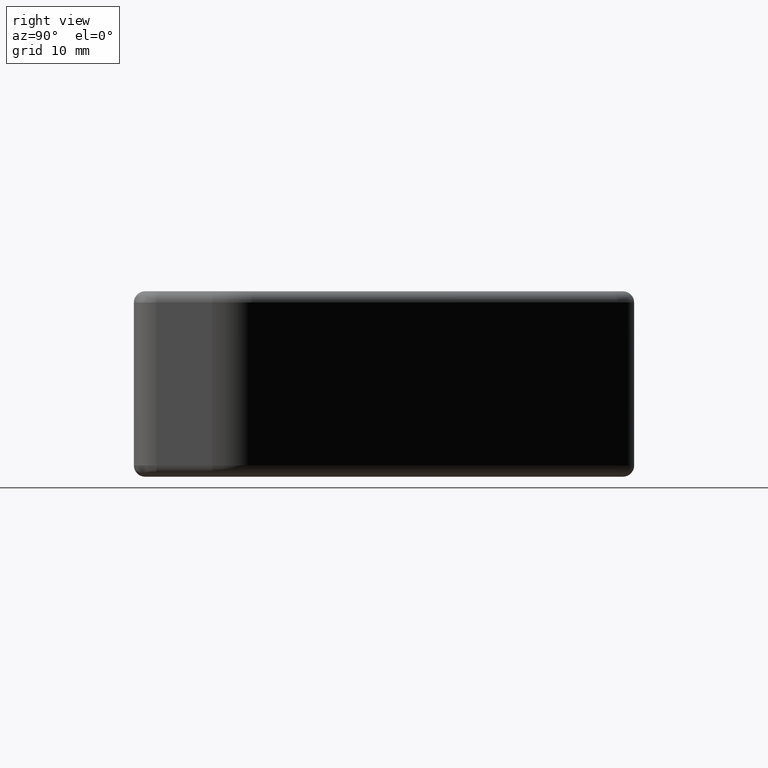
[diagram: clean part render]
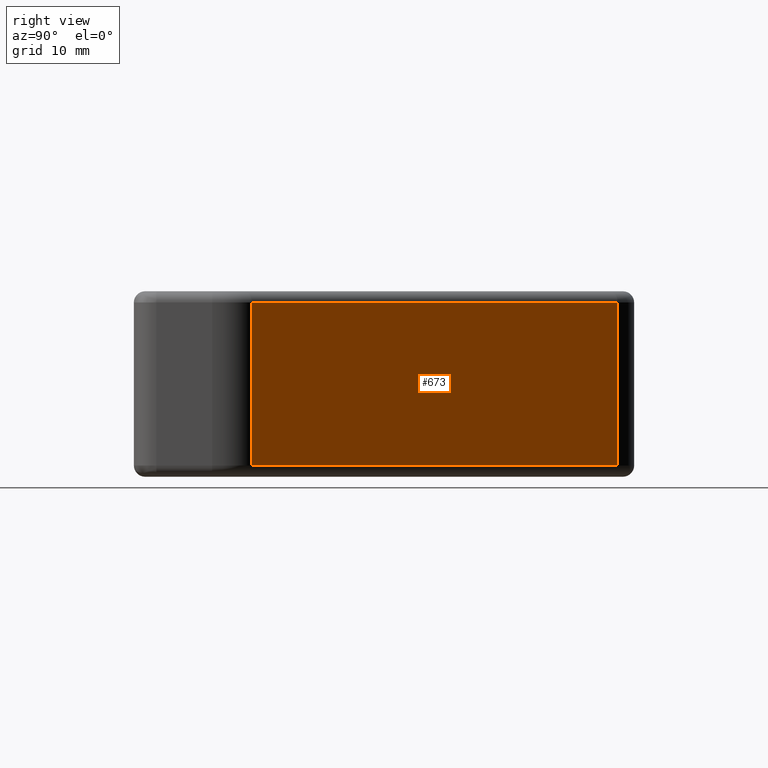
[diagram: same view with one face highlighted and labeled with its STEP entity id]
A machine part, right view. The second image highlights one B-rep face of the part: STEP entity #673.
In plain terms, the highlighted planar face has unit normal (-0.7071, -0.7071, 0).
Its self-contained STEP definition (entity closure, byte-faithful):
#53=FACE_OUTER_BOUND('',#96,.T.);
#96=EDGE_LOOP('',(#514,#515,#516,#517));
#172=LINE('',#1111,#234);
#173=LINE('',#1113,#235);
#174=LINE('',#1115,#236);
#175=LINE('',#1116,#237);
#234=VECTOR('',#874,46.0121933088197);
#235=VECTOR('',#875,14.5);
#236=VECTOR('',#876,46.0121933088197);
#237=VECTOR('',#877,14.5);
#336=VERTEX_POINT('',#1109);
#337=VERTEX_POINT('',#1110);
#338=VERTEX_POINT('',#1112);
#339=VERTEX_POINT('',#1114);
#404=EDGE_CURVE('',#336,#337,#172,.T.);
#405=EDGE_CURVE('',#337,#338,#173,.T.);
#406=EDGE_CURVE('',#338,#339,#174,.T.);
#407=EDGE_CURVE('',#339,#336,#175,.T.);
#514=ORIENTED_EDGE('',*,*,#404,.T.);
#515=ORIENTED_EDGE('',*,*,#405,.T.);
#516=ORIENTED_EDGE('',*,*,#406,.T.);
#517=ORIENTED_EDGE('',*,*,#407,.T.);
#653=PLANE('',#729);
#673=ADVANCED_FACE('',(#53),#653,.F.);
#729=AXIS2_PLACEMENT_3D('',#1108,#872,#873);
#872=DIRECTION('center_axis',(-0.707106781186548,-0.707106781186548,0.));
#873=DIRECTION('ref_axis',(0.707106781186547,-0.707106781186548,0.));
#874=DIRECTION('',(0.707106781186547,-0.707106781186547,0.));
#875=DIRECTION('',(5.41087747005995E-65,0.,-1.));
#876=DIRECTION('',(-0.707106781186547,0.707106781186547,0.));
#877=DIRECTION('',(-5.41087747005995E-65,0.,1.));
#1108=CARTESIAN_POINT('Origin',(44.5,9.03553390593276,8.25000000000001));
#1109=CARTESIAN_POINT('',(10.5000000000001,43.0355339059327,7.25000000000001));
#1110=CARTESIAN_POINT('',(43.0355339059328,10.5,7.25000000000001));
#1111=CARTESIAN_POINT('',(44.5,9.03553390593276,7.25000000000001));
#1112=CARTESIAN_POINT('',(43.0355339059328,10.5,-7.25000000000001));
#1113=CARTESIAN_POINT('',(43.0355339059328,10.5,8.25000000000001));
#1114=CARTESIAN_POINT('',(10.5000000000001,43.0355339059327,-7.25000000000001));
#1115=CARTESIAN_POINT('',(44.5,9.03553390593276,-7.25000000000001));
#1116=CARTESIAN_POINT('',(10.5000000000001,43.0355339059327,8.25000000000001));